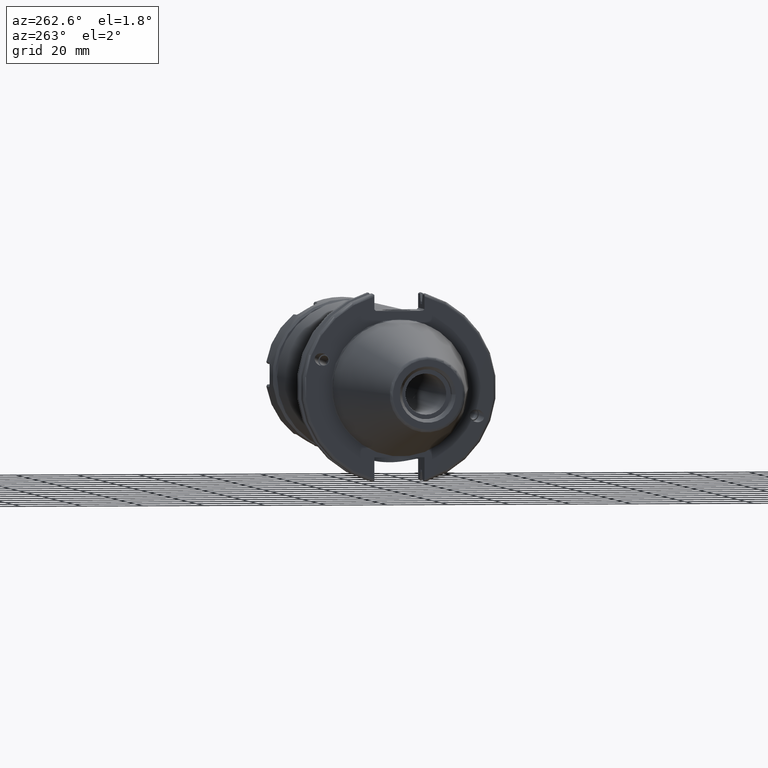
[diagram: clean part render]
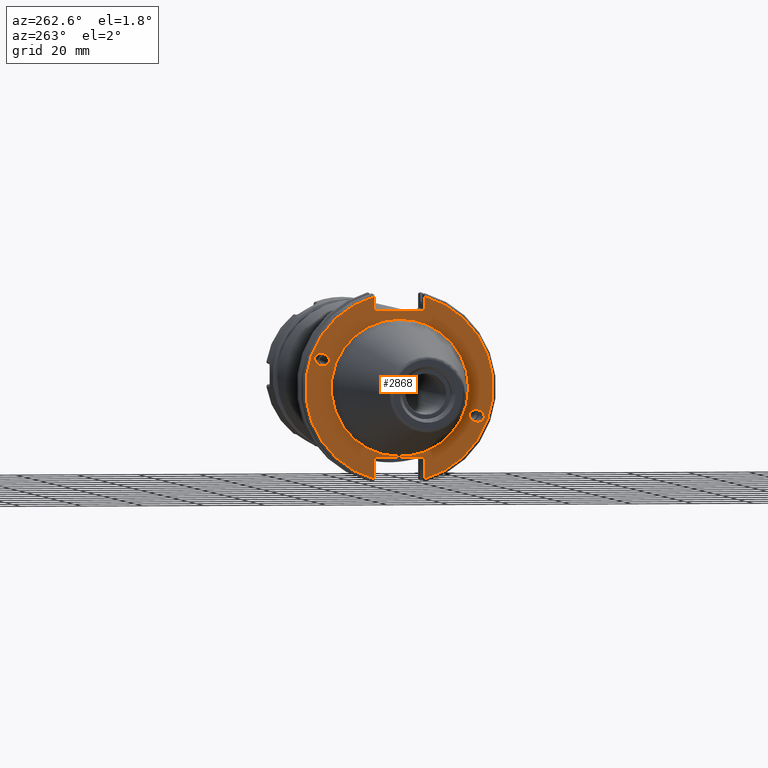
[diagram: same view with one face highlighted and labeled with its STEP entity id]
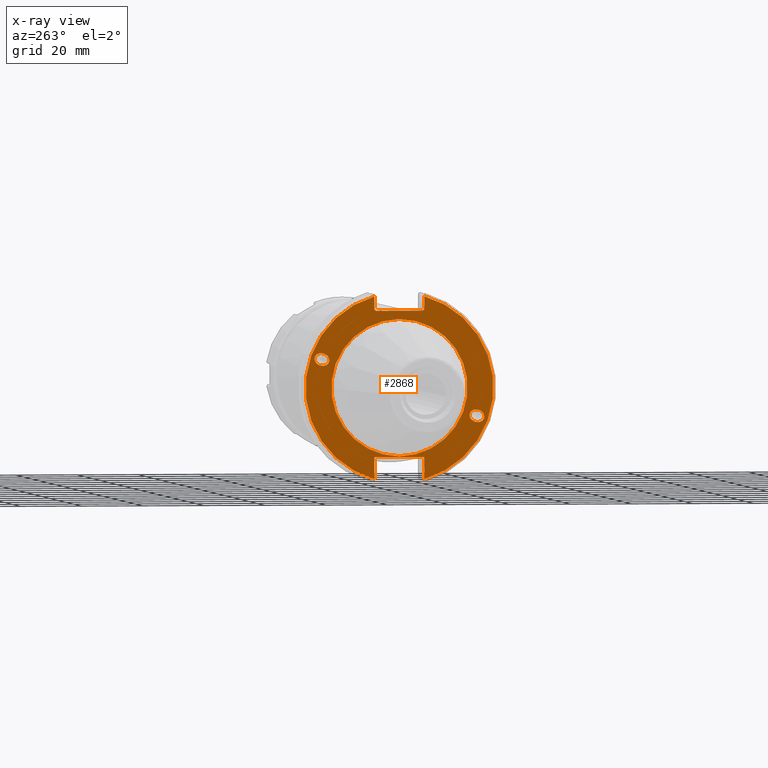
[diagram: x-ray of the same camera — body ghosted, the highlighted face saturated]
A machine part, auxiliary view. The second image highlights one B-rep face of the part: STEP entity #2868.
The next image is the same camera in x-ray: the body ghosted, the highlighted face saturated — about 0% of this face is hidden behind the body in this view.
In plain terms, the highlighted planar face has unit normal (-1, 0, 0).
Its self-contained STEP definition (entity closure, byte-faithful):
#166=ELLIPSE('',#3121,2.44154917752292,2.00000000000001);
#175=ELLIPSE('',#3164,2.44154917752292,2.00000000000001);
#188=PLANE('',#3170);
#256=FACE_BOUND('',#507,.T.);
#257=FACE_BOUND('',#508,.T.);
#258=FACE_BOUND('',#509,.T.);
#330=FACE_OUTER_BOUND('',#506,.T.);
#506=EDGE_LOOP('',(#2126,#2127,#2128,#2129,#2130,#2131,#2132,#2133,#2134,
#2135));
#507=EDGE_LOOP('',(#2136));
#508=EDGE_LOOP('',(#2137));
#509=EDGE_LOOP('',(#2138));
#686=CIRCLE('',#3168,22.3);
#688=CIRCLE('',#3171,30.75);
#689=CIRCLE('',#3172,30.75);
#815=LINE('',#4644,#989);
#816=LINE('',#4648,#990);
#817=LINE('',#4650,#991);
#818=LINE('',#4652,#992);
#819=LINE('',#4654,#993);
#820=LINE('',#4656,#994);
#821=LINE('',#4660,#995);
#822=LINE('',#4661,#996);
#989=VECTOR('',#3626,10.);
#990=VECTOR('',#3629,10.);
#991=VECTOR('',#3630,10.);
#992=VECTOR('',#3631,10.);
#993=VECTOR('',#3632,10.);
#994=VECTOR('',#3633,10.);
#995=VECTOR('',#3636,10.);
#996=VECTOR('',#3637,10.);
#1259=VERTEX_POINT('',#4447);
#1299=VERTEX_POINT('',#4630);
#1302=VERTEX_POINT('',#4637);
#1303=VERTEX_POINT('',#4642);
#1304=VERTEX_POINT('',#4643);
#1305=VERTEX_POINT('',#4645);
#1306=VERTEX_POINT('',#4647);
#1307=VERTEX_POINT('',#4649);
#1308=VERTEX_POINT('',#4651);
#1309=VERTEX_POINT('',#4653);
#1310=VERTEX_POINT('',#4655);
#1311=VERTEX_POINT('',#4657);
#1312=VERTEX_POINT('',#4659);
#1553=EDGE_CURVE('',#1259,#1259,#166,.T.);
#1609=EDGE_CURVE('',#1299,#1299,#175,.T.);
#1612=EDGE_CURVE('',#1302,#1302,#686,.T.);
#1614=EDGE_CURVE('',#1303,#1304,#815,.T.);
#1615=EDGE_CURVE('',#1305,#1304,#688,.T.);
#1616=EDGE_CURVE('',#1305,#1306,#816,.T.);
#1617=EDGE_CURVE('',#1307,#1306,#817,.T.);
#1618=EDGE_CURVE('',#1307,#1308,#818,.T.);
#1619=EDGE_CURVE('',#1309,#1308,#819,.T.);
#1620=EDGE_CURVE('',#1309,#1310,#820,.T.);
#1621=EDGE_CURVE('',#1311,#1310,#689,.T.);
#1622=EDGE_CURVE('',#1311,#1312,#821,.T.);
#1623=EDGE_CURVE('',#1312,#1303,#822,.T.);
#2126=ORIENTED_EDGE('',*,*,#1614,.T.);
#2127=ORIENTED_EDGE('',*,*,#1615,.F.);
#2128=ORIENTED_EDGE('',*,*,#1616,.T.);
#2129=ORIENTED_EDGE('',*,*,#1617,.F.);
#2130=ORIENTED_EDGE('',*,*,#1618,.T.);
#2131=ORIENTED_EDGE('',*,*,#1619,.F.);
#2132=ORIENTED_EDGE('',*,*,#1620,.T.);
#2133=ORIENTED_EDGE('',*,*,#1621,.F.);
#2134=ORIENTED_EDGE('',*,*,#1622,.T.);
#2135=ORIENTED_EDGE('',*,*,#1623,.T.);
#2136=ORIENTED_EDGE('',*,*,#1553,.T.);
#2137=ORIENTED_EDGE('',*,*,#1609,.T.);
#2138=ORIENTED_EDGE('',*,*,#1612,.F.);
#2868=ADVANCED_FACE('',(#330,#256,#257,#258),#188,.T.);
#3121=AXIS2_PLACEMENT_3D('',#4449,#3509,#3510);
#3164=AXIS2_PLACEMENT_3D('',#4632,#3612,#3613);
#3168=AXIS2_PLACEMENT_3D('',#4639,#3620,#3621);
#3170=AXIS2_PLACEMENT_3D('',#4641,#3624,#3625);
#3171=AXIS2_PLACEMENT_3D('',#4646,#3627,#3628);
#3172=AXIS2_PLACEMENT_3D('',#4658,#3634,#3635);
#3509=DIRECTION('center_axis',(1.,0.,0.));
#3510=DIRECTION('ref_axis',(5.68400912649E-17,-0.939692620785909,-0.342020143325667));
#3612=DIRECTION('center_axis',(1.,0.,0.));
#3613=DIRECTION('ref_axis',(5.68400912649E-17,0.939692620785909,0.342020143325667));
#3620=DIRECTION('center_axis',(-1.,0.,0.));
#3621=DIRECTION('ref_axis',(0.,-1.,1.83697019872103E-16));
#3624=DIRECTION('center_axis',(-1.,0.,0.));
#3625=DIRECTION('ref_axis',(0.,0.,1.));
#3626=DIRECTION('',(0.,0.,-1.));
#3627=DIRECTION('center_axis',(1.,0.,0.));
#3628=DIRECTION('ref_axis',(0.,-1.,1.60812264967664E-16));
#3629=DIRECTION('',(0.,0.,-1.));
#3630=DIRECTION('',(0.,-0.70710678118655,0.707106781186545));
#3631=DIRECTION('',(0.,1.,0.));
#3632=DIRECTION('',(0.,-0.707106781186549,-0.707106781186546));
#3633=DIRECTION('',(0.,0.,1.));
#3634=DIRECTION('center_axis',(1.,0.,0.));
#3635=DIRECTION('ref_axis',(0.,1.,1.60812264967664E-16));
#3636=DIRECTION('',(0.,0.,1.));
#3637=DIRECTION('',(0.,-1.,0.));
#4447=CARTESIAN_POINT('',(3.175,-23.0773950158153,-8.39948487016));
#4449=CARTESIAN_POINT('Origin',(3.175,-25.3717007612195,-9.23454386979305));
#4630=CARTESIAN_POINT('',(3.175,23.0773950158153,8.39948487016));
#4632=CARTESIAN_POINT('Origin',(3.175,25.3717007612195,9.23454386979306));
#4637=CARTESIAN_POINT('',(3.175,-2.7309623620986E-15,22.3));
#4639=CARTESIAN_POINT('Origin',(3.175,0.,0.));
#4641=CARTESIAN_POINT('Origin',(3.175,31.75,0.));
#4642=CARTESIAN_POINT('',(3.175,-8.19,-22.6));
#4643=CARTESIAN_POINT('',(3.175,-8.19,-29.6392712461019));
#4644=CARTESIAN_POINT('',(3.175,-8.19,-11.3));
#4645=CARTESIAN_POINT('',(3.175,-8.18999999999999,29.6392712461019));
#4646=CARTESIAN_POINT('Origin',(3.175,0.,0.));
#4647=CARTESIAN_POINT('',(3.175,-8.18999999999999,25.5));
#4648=CARTESIAN_POINT('',(3.175,-8.18999999999999,12.5));
#4649=CARTESIAN_POINT('',(3.175,-7.68999999999999,25.));
#4650=CARTESIAN_POINT('',(3.175,8.29500000000007,9.01500000000004));
#4651=CARTESIAN_POINT('',(3.175,7.69,25.));
#4652=CARTESIAN_POINT('',(3.175,15.875,25.));
#4653=CARTESIAN_POINT('',(3.175,8.19,25.5));
#4654=CARTESIAN_POINT('',(3.175,7.58000000000002,24.89));
#4655=CARTESIAN_POINT('',(3.175,8.19,29.6392712461019));
#4656=CARTESIAN_POINT('',(3.175,8.19,12.5));
#4657=CARTESIAN_POINT('',(3.175,8.18999999999999,-29.6392712461019));
#4658=CARTESIAN_POINT('Origin',(3.175,0.,0.));
#4659=CARTESIAN_POINT('',(3.175,8.19000000000002,-22.6));
#4660=CARTESIAN_POINT('',(3.175,8.19000000000001,-11.3));
#4661=CARTESIAN_POINT('',(3.175,15.875,-22.6));